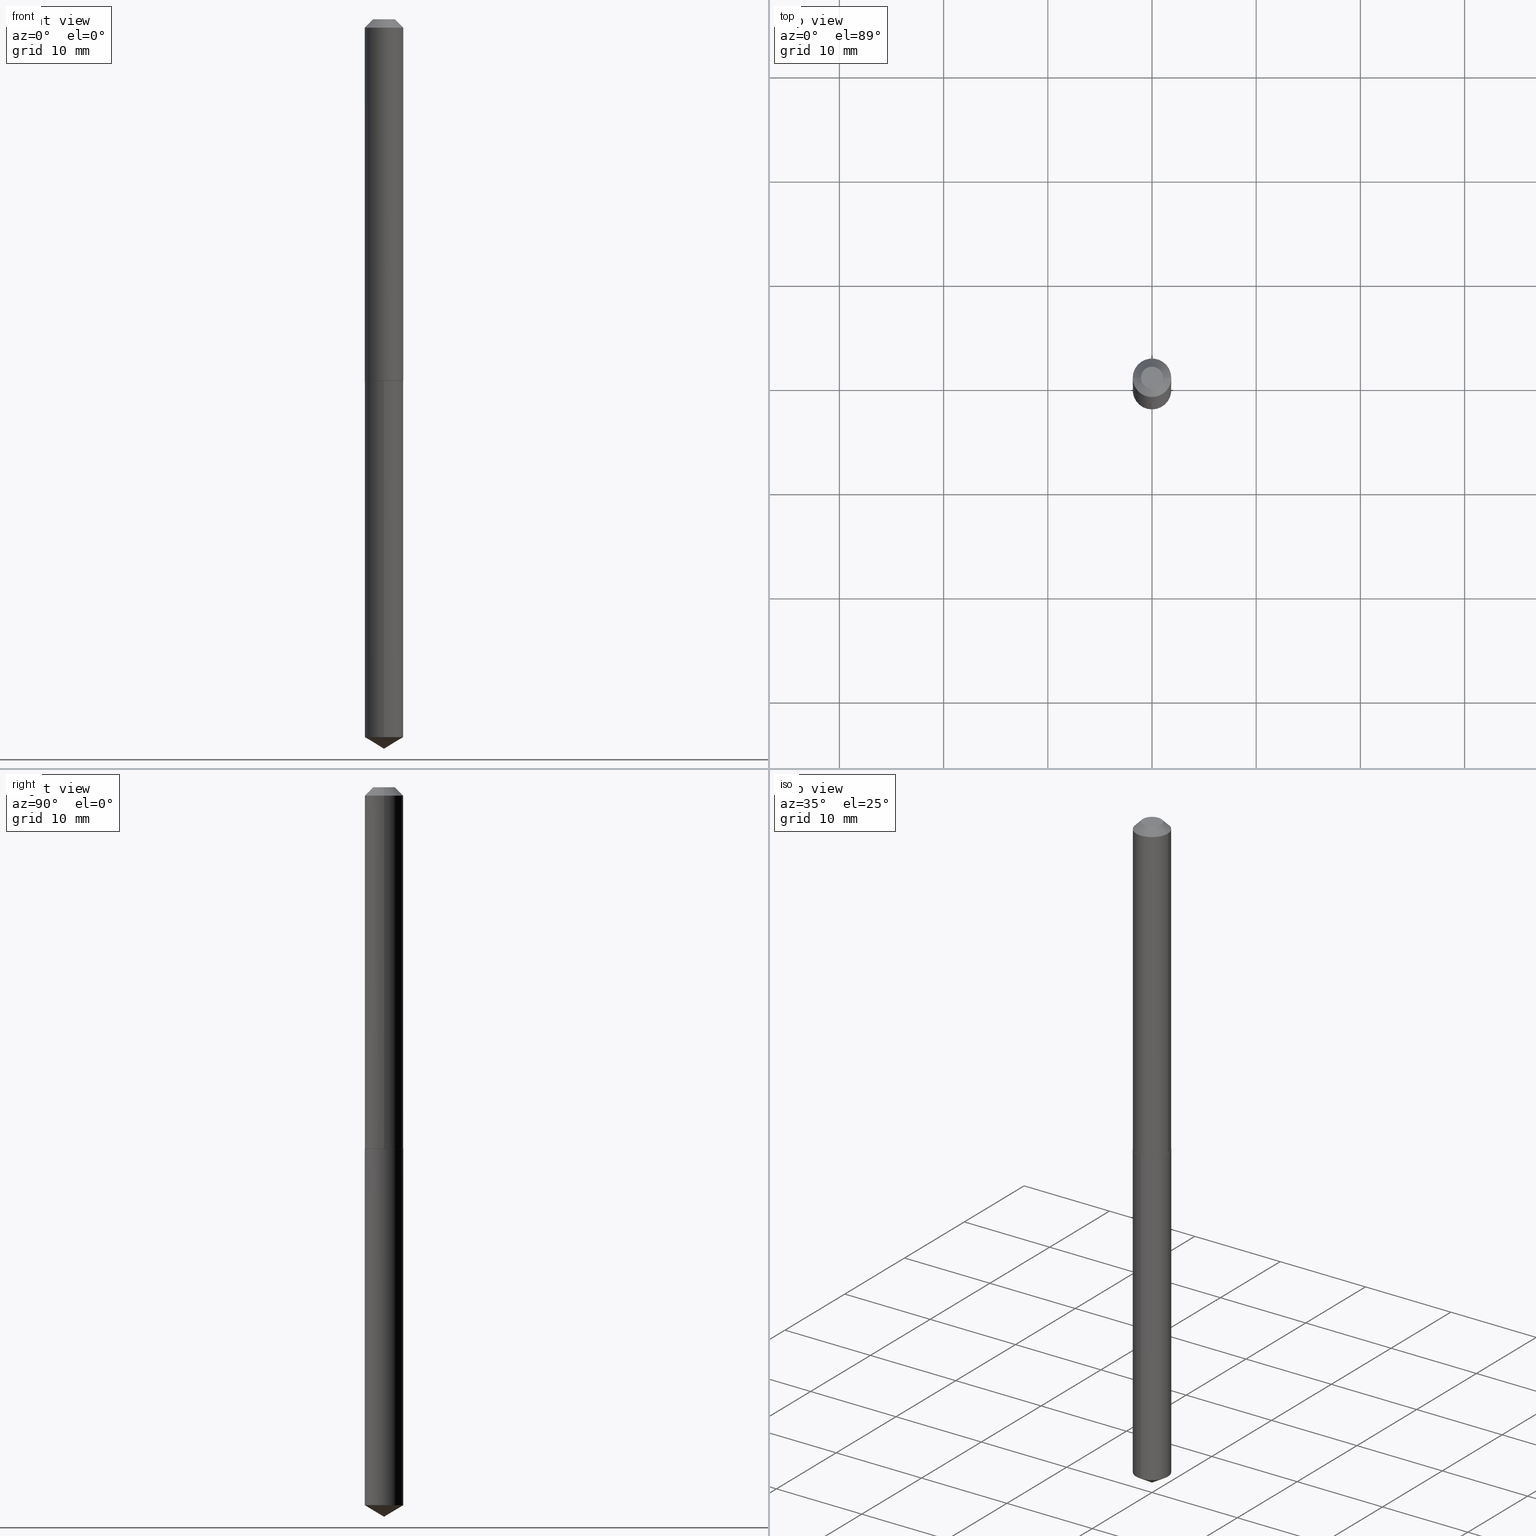
[diagram: canonical four-view strip — front | top / right | iso, engineering-drawing reading convention]
A machine part, canonical four-view strip (front | top / right | iso — engineering-drawing reading convention). The complete STEP part file that produces these views, byte-faithful:
ISO-10303-21;
HEADER;
FILE_DESCRIPTION (( 'STEP AP203' ),
    '1' );
FILE_NAME ('61073.STEP',
    '2024-04-23T03:14:23',
    ( '' ),
    ( '' ),
    'SwSTEP 2.0',
    'SolidWorks 2023',
    '' );
FILE_SCHEMA (( 'CONFIG_CONTROL_DESIGN' ));
ENDSEC;

DATA;
#1 = VECTOR ( 'NONE', #95, 39.37007874015748143 ) ;
#2 = ORIENTED_EDGE ( 'NONE', *, *, #390, .T. ) ;
#3 = CARTESIAN_POINT ( 'NONE',  ( 5.176303830012663012E-16, 0.07284999999999522413, -1.366200000000000081 ) ) ;
#4 = ORIENTED_EDGE ( 'NONE', *, *, #318, .F. ) ;
#5 = EDGE_LOOP ( 'NONE', ( #4, #185, #362, #191 ) ) ;
#6 = CARTESIAN_POINT ( 'NONE',  ( 3.339776748607040525E-29, -4.768316064458083385E-15, -1.365699999999999914 ) ) ;
#7 = ORIENTED_EDGE ( 'NONE', *, *, #154, .F. ) ;
#8 = APPROVAL_PERSON_ORGANIZATION ( #49, #223, #385 ) ;
#9 = ORIENTED_EDGE ( 'NONE', *, *, #357, .F. ) ;
#10 = PLANE ( 'NONE',  #245 ) ;
#11 = ADVANCED_FACE ( 'NONE', ( #38 ), #276, .T. ) ;
#12 = DIRECTION ( 'NONE',  ( -2.445494545529433837E-29, 3.491444478637119500E-15, 1.000000000000000000 ) ) ;
#13 = CARTESIAN_POINT ( 'NONE',  ( -5.989671091818665474E-48, 8.551662891793964028E-34, 2.449293598294711584E-19 ) ) ;
#14 = AXIS2_PLACEMENT_3D ( 'NONE', #383, #228, #76 ) ;
#15 = ORIENTED_EDGE ( 'NONE', *, *, #314, .T. ) ;
#16 = CARTESIAN_POINT ( 'NONE',  ( -0.07285000000000016462, -4.250685681456849033E-15, -1.365699999999999914 ) ) ;
#17 = DIRECTION ( 'NONE',  ( 1.000000000000000000, -6.982962677686262766E-15, 0.000000000000000000 ) ) ;
#18 = APPROVAL_STATUS ( 'not_yet_approved' ) ;
#19 = CARTESIAN_POINT ( 'NONE',  ( -0.07235000000000038622, -4.253334908630959445E-15, -1.366199999999999859 ) ) ;
#20 = ADVANCED_FACE ( 'NONE', ( #130 ), #317, .T. ) ;
#21 = APPROVAL_STATUS ( 'not_yet_approved' ) ;
#22 = DIRECTION ( 'NONE',  ( 1.000000000000000000, -6.982962677686261977E-15, 0.000000000000000000 ) ) ;
#23 = LINE ( 'NONE', #356, #257 ) ;
#24 = PERSON_AND_ORGANIZATION ( #27, #166 ) ;
#25 = AXIS2_PLACEMENT_3D ( 'NONE', #374, #12, #370 ) ;
#26 = DIRECTION ( 'NONE',  ( 2.438088387897960049E-29, -3.491481338843145188E-15, -1.000000000000000000 ) ) ;
#27 = PERSON ( 'UNSPECIFIED', 'UNSPECIFIED', 'UNSPECIFIED', ('UNSPECIFIED'), ('UNSPECIFIED'), ('UNSPECIFIED') ) ;
#28 = ORIENTED_EDGE ( 'NONE', *, *, #248, .F. ) ;
#29 = CC_DESIGN_APPROVAL ( #223, ( #87 ) ) ;
#30 = ORIENTED_EDGE ( 'NONE', *, *, #154, .T. ) ;
#31 = ORIENTED_EDGE ( 'NONE', *, *, #361, .T. ) ;
#32 = AXIS2_PLACEMENT_3D ( 'NONE', #235, #259, #349 ) ;
#33 = COORDINATED_UNIVERSAL_TIME_OFFSET ( 5, 0, .BEHIND. ) ;
#34 = ORIENTED_EDGE ( 'NONE', *, *, #236, .T. ) ;
#35 = ADVANCED_FACE ( 'NONE', ( #343 ), #10, .F. ) ;
#36 = CARTESIAN_POINT ( 'NONE',  ( 0.04159999999999999809, -4.471463938419003597E-16, 2.449293598320496415E-19 ) ) ;
#37 = DIRECTION ( 'NONE',  ( 6.982962677686265922E-15, 1.000000000000000000, -3.491444478637119105E-15 ) ) ;
#38 = FACE_OUTER_BOUND ( 'NONE', #312, .T. ) ;
#39 = CIRCLE ( 'NONE', #123, 0.07285000000000001197 ) ;
#40 = LINE ( 'NONE', #286, #173 ) ;
#41 = APPROVAL_ROLE ( '' ) ;
#42 = DIRECTION ( 'NONE',  ( -5.985567269335946802E-15, -0.8571673007021111124, 0.5150380749100559319 ) ) ;
#43 = PRODUCT ( '61073', '61073', '', ( #352 ) ) ;
#44 = FACE_OUTER_BOUND ( 'NONE', #302, .T. ) ;
#45 = COORDINATED_UNIVERSAL_TIME_OFFSET ( 5, 0, .BEHIND. ) ;
#46 = CC_DESIGN_APPROVAL ( #148, ( #82 ) ) ;
#47 = FACE_OUTER_BOUND ( 'NONE', #62, .T. ) ;
#48 = EDGE_CURVE ( 'NONE', #253, #216, #39, .T. ) ;
#49 = PERSON_AND_ORGANIZATION ( #27, #166 ) ;
#50 = LINE ( 'NONE', #258, #221 ) ;
#51 = DIRECTION ( 'NONE',  ( 1.000000000000000000, 0.000000000000000000, 0.000000000000000000 ) ) ;
#52 = CARTESIAN_POINT ( 'NONE',  ( 3.340999483010132766E-29, -4.770061805127504889E-15, -1.366199999999999859 ) ) ;
#53 = DATE_AND_TIME ( #176, #193 ) ;
#54 = CIRCLE ( 'NONE', #212, 0.07285000000000016462 ) ;
#55 = DIRECTION ( 'NONE',  ( 1.000000000000000000, -6.982962677686262766E-15, 0.000000000000000000 ) ) ;
#56 = ORIENTED_EDGE ( 'NONE', *, *, #159, .T. ) ;
#57 = DIRECTION ( 'NONE',  ( -2.445494545529433837E-29, 3.491444478637119105E-15, 1.000000000000000000 ) ) ;
#58 = EDGE_LOOP ( 'NONE', ( #214, #121, #7, #209 ) ) ;
#59 = DIRECTION ( 'NONE',  ( -2.445468806185136597E-29, 3.491481338843145583E-15, 1.000000000000000000 ) ) ;
#60 = CLOSED_SHELL ( 'NONE', ( #329, #20, #279, #215, #120, #201, #388, #227 ) ) ;
#61 = ORIENTED_EDGE ( 'NONE', *, *, #357, .T. ) ;
#62 = EDGE_LOOP ( 'NONE', ( #304, #151 ) ) ;
#63 = DIRECTION ( 'NONE',  ( -6.982962677686265922E-15, -1.000000000000000000, 3.468864327941583565E-15 ) ) ;
#64 = EDGE_CURVE ( 'NONE', #153, #333, #105, .T. ) ;
#65 = AXIS2_PLACEMENT_3D ( 'NONE', #83, #293, #384 ) ;
#66 = CIRCLE ( 'NONE', #321, 0.07284999999999999809 ) ;
#67 = DIRECTION ( 'NONE',  ( -2.445494545529433837E-29, 3.491444478637119500E-15, 1.000000000000000000 ) ) ;
#68 = CARTESIAN_POINT ( 'NONE',  ( 0.07235000000000038622, -5.275279154858108532E-15, -1.366199999999999859 ) ) ;
#69 = ORIENTED_EDGE ( 'NONE', *, *, #361, .F. ) ;
#70 = DIRECTION ( 'NONE',  ( -0.7071067811864629737, 7.493145998870048082E-15, 0.7071067811866319497 ) ) ;
#71 = CARTESIAN_POINT ( 'NONE',  ( 7.642090019328604414E-31, -1.091087918388490513E-16, -0.03125000000000021511 ) ) ;
#72 = AXIS2_PLACEMENT_3D ( 'NONE', #144, #263, #179 ) ;
#73 = CC_DESIGN_SECURITY_CLASSIFICATION ( #82, ( #87 ) ) ;
#74 = EDGE_CURVE ( 'NONE', #122, #273, #40, .T. ) ;
#75 = CARTESIAN_POINT ( 'NONE',  ( -0.07285000000000001197, 3.996000392305954789E-16, -0.03125000000000021511 ) ) ;
#76 = DIRECTION ( 'NONE',  ( 1.000000000000000000, -6.982962677686266711E-15, 4.876176775795936353E-29 ) ) ;
#77 = COORDINATED_UNIVERSAL_TIME_OFFSET ( 5, 0, .BEHIND. ) ;
#78 = CYLINDRICAL_SURFACE ( 'NONE', #14, 0.07285000000000008136 ) ;
#79 = CC_DESIGN_PERSON_AND_ORGANIZATION_ASSIGNMENT ( #196, #219, ( #82 ) ) ;
#80 = MANIFOLD_SOLID_BREP ( 'Body-Move/Copy2[2]', #60 ) ;
#81 = PERSON_AND_ORGANIZATION_ROLE ( 'design_owner' ) ;
#82 = SECURITY_CLASSIFICATION ( '', '', #350 ) ;
#83 = CARTESIAN_POINT ( 'NONE',  ( 3.340999483010132766E-29, -4.770061805127504889E-15, -1.366199999999999859 ) ) ;
#84 = DATE_TIME_ROLE ( 'classification_date' ) ;
#85 = DIRECTION ( 'NONE',  ( -2.445494545529433837E-29, 3.491444478637119500E-15, 1.000000000000000000 ) ) ;
#86 = CIRCLE ( 'NONE', #372, 0.07284999999999999809 ) ;
#87 = PRODUCT_DEFINITION_FORMATION_WITH_SPECIFIED_SOURCE ( 'ANY', '', #43, .NOT_KNOWN. ) ;
#88 = FACE_OUTER_BOUND ( 'NONE', #301, .T. ) ;
#89 = ORIENTED_EDGE ( 'NONE', *, *, #336, .T. ) ;
#90 = APPROVAL_STATUS ( 'not_yet_approved' ) ;
#91 = ORIENTED_EDGE ( 'NONE', *, *, #74, .F. ) ;
#92 = VECTOR ( 'NONE', #70, 39.37007874015748854 ) ;
#93 = ORIENTED_EDGE ( 'NONE', *, *, #390, .F. ) ;
#94 = ORIENTED_EDGE ( 'NONE', *, *, #314, .F. ) ;
#95 = DIRECTION ( 'NONE',  ( -0.7071067811865451302, 2.468850131082231817E-15, -0.7071067811865499042 ) ) ;
#96 = LINE ( 'NONE', #341, #360 ) ;
#97 = DIRECTION ( 'NONE',  ( 6.090539988449784746E-15, 0.8571673007021146651, 0.5150380749100500477 ) ) ;
#98 = CIRCLE ( 'NONE', #198, 0.07285000000000016462 ) ;
#99 = LOCAL_TIME ( 23, 14, 23.00000000000000000, #355 ) ;
#100 = CARTESIAN_POINT ( 'NONE',  ( -0.07285000000000008136, 5.176303830012335635E-16, -3.583444213250702632E-30 ) ) ;
#101 = DIRECTION ( 'NONE',  ( -2.445468806185136597E-29, 3.491481338843145583E-15, 1.000000000000000000 ) ) ;
#102 = EDGE_CURVE ( 'NONE', #180, #253, #369, .T. ) ;
#103 = CYLINDRICAL_SURFACE ( 'NONE', #138, 0.07284999999999999809 ) ;
#104 = DIRECTION ( 'NONE',  ( -2.445468806185136597E-29, 3.491481338843145583E-15, 1.000000000000000000 ) ) ;
#105 = CIRCLE ( 'NONE', #313, 0.04159999999999999809 ) ;
#106 = DESIGN_CONTEXT ( 'detailed design', #277, 'design' ) ;
#107 =( LENGTH_UNIT ( ) NAMED_UNIT ( * ) SI_UNIT ( $, .METRE. ) );
#108 = FACE_OUTER_BOUND ( 'NONE', #275, .T. ) ;
#109 = APPLICATION_PROTOCOL_DEFINITION ( 'international standard', 'config_control_design', 1994, #277 ) ;
#110 = EDGE_CURVE ( 'NONE', #180, #222, #54, .T. ) ;
#111 = FACE_OUTER_BOUND ( 'NONE', #58, .T. ) ;
#112 = AXIS2_PLACEMENT_3D ( 'NONE', #200, #26, #170 ) ;
#113 =( NAMED_UNIT ( * ) PLANE_ANGLE_UNIT ( ) SI_UNIT ( $, .RADIAN. ) );
#114 = DIRECTION ( 'NONE',  ( -6.982962677686265922E-15, -1.000000000000000000, 3.749962928845934523E-15 ) ) ;
#115 =( NAMED_UNIT ( * ) SI_UNIT ( $, .STERADIAN. ) SOLID_ANGLE_UNIT ( ) );
#116 = CARTESIAN_POINT ( 'NONE',  ( 3.340999483010132766E-29, -4.770061805127504889E-15, -1.366199999999999859 ) ) ;
#117 = ORIENTED_EDGE ( 'NONE', *, *, #64, .T. ) ;
#118 = CALENDAR_DATE ( 2024, 22, 4 ) ;
#119 = VERTEX_POINT ( 'NONE', #68 ) ;
#120 = ADVANCED_FACE ( 'NONE', ( #252 ), #353, .T. ) ;
#121 = ORIENTED_EDGE ( 'NONE', *, *, #248, .T. ) ;
#122 = VERTEX_POINT ( 'NONE', #134 ) ;
#123 = AXIS2_PLACEMENT_3D ( 'NONE', #71, #308, #160 ) ;
#124 = AXIS2_PLACEMENT_3D ( 'NONE', #135, #167, #51 ) ;
#125 = EDGE_LOOP ( 'NONE', ( #218, #189, #146 ) ) ;
#126 = DIRECTION ( 'NONE',  ( 1.000000000000000000, -6.982962677686266711E-15, 4.876176775795936353E-29 ) ) ;
#127 = DIMENSIONAL_EXPONENTS ( 1.000000000000000000, 0.000000000000000000, 0.000000000000000000, 0.000000000000000000, 0.000000000000000000, 0.000000000000000000, 0.000000000000000000 ) ;
#128 = COORDINATED_UNIVERSAL_TIME_OFFSET ( 5, 0, .BEHIND. ) ;
#129 = EDGE_CURVE ( 'NONE', #122, #368, #375, .T. ) ;
#130 = FACE_OUTER_BOUND ( 'NONE', #211, .T. ) ;
#131 = DIRECTION ( 'NONE',  ( 1.000000000000000000, -6.982962677686262766E-15, 0.000000000000000000 ) ) ;
#132 = DIRECTION ( 'NONE',  ( 2.445494545529433837E-29, -3.491444478637119105E-15, -1.000000000000000000 ) ) ;
#133 = EDGE_CURVE ( 'NONE', #153, #253, #226, .T. ) ;
#134 = CARTESIAN_POINT ( 'NONE',  ( 6.739538418024567708E-29, -9.622071838676037627E-15, -2.755900000000000016 ) ) ;
#135 = CARTESIAN_POINT ( 'NONE',  ( 0.000000000000000000, 0.000000000000000000, 0.000000000000000000 ) ) ;
#136 = VECTOR ( 'NONE', #57, 39.37007874015748143 ) ;
#137 = PRODUCT_DEFINITION_SHAPE ( 'NONE', 'NONE',  #376 ) ;
#138 = AXIS2_PLACEMENT_3D ( 'NONE', #307, #280, #339 ) ;
#139 = EDGE_CURVE ( 'NONE', #177, #119, #205, .T. ) ;
#140 = PERSON_AND_ORGANIZATION ( #27, #166 ) ;
#141 = DIRECTION ( 'NONE',  ( -2.445468806185136597E-29, 3.491481338843145583E-15, 1.000000000000000000 ) ) ;
#142 = FACE_OUTER_BOUND ( 'NONE', #125, .T. ) ;
#143 = PERSON_AND_ORGANIZATION ( #27, #166 ) ;
#144 = CARTESIAN_POINT ( 'NONE',  ( -8.953980956318705099E-28, 1.278363218437419844E-13, 36.61417874015747742 ) ) ;
#145 = CARTESIAN_POINT ( 'NONE',  ( 3.339776748607040525E-29, -4.768316064458083385E-15, -1.365699999999999914 ) ) ;
#146 = ORIENTED_EDGE ( 'NONE', *, *, #325, .F. ) ;
#147 = CC_DESIGN_PERSON_AND_ORGANIZATION_ASSIGNMENT ( #24, #389, ( #87 ) ) ;
#148 = APPROVAL ( #90, 'UNSPECIFIED' ) ;
#149 = ORIENTED_EDGE ( 'NONE', *, *, #102, .F. ) ;
#150 = LINE ( 'NONE', #267, #359 ) ;
#151 = ORIENTED_EDGE ( 'NONE', *, *, #139, .F. ) ;
#152 = AXIS2_PLACEMENT_3D ( 'NONE', #347, #156, #63 ) ;
#153 = VERTEX_POINT ( 'NONE', #203 ) ;
#154 = EDGE_CURVE ( 'NONE', #162, #278, #86, .T. ) ;
#155 = DIRECTION ( 'NONE',  ( -2.445468806185136597E-29, 3.491481338843145583E-15, 1.000000000000000000 ) ) ;
#156 = DIRECTION ( 'NONE',  ( -2.445494545529433837E-29, 3.491444478637119500E-15, 1.000000000000000000 ) ) ;
#157 = DIRECTION ( 'NONE',  ( -6.982962677686265922E-15, -1.000000000000000000, 3.749962928845934523E-15 ) ) ;
#158 = ORIENTED_EDGE ( 'NONE', *, *, #110, .T. ) ;
#159 = EDGE_CURVE ( 'NONE', #119, #177, #238, .T. ) ;
#160 = DIRECTION ( 'NONE',  ( 1.000000000000000000, -6.982962677686265922E-15, 0.000000000000000000 ) ) ;
#161 = CIRCLE ( 'NONE', #25, 0.07285000000000001197 ) ;
#162 = VERTEX_POINT ( 'NONE', #234 ) ;
#163 = APPROVAL_DATE_TIME ( #288, #287 ) ;
#164 = EDGE_LOOP ( 'NONE', ( #30, #31 ) ) ;
#165 = AXIS2_PLACEMENT_3D ( 'NONE', #145, #207, #274 ) ;
#166 = ORGANIZATION ( 'UNSPECIFIED', 'UNSPECIFIED', '' ) ;
#167 = DIRECTION ( 'NONE',  ( 0.000000000000000000, 0.000000000000000000, 1.000000000000000000 ) ) ;
#168 = PLANE ( 'NONE',  #65 ) ;
#169 =( CONVERSION_BASED_UNIT ( 'INCH', #266 ) LENGTH_UNIT ( ) NAMED_UNIT ( #127 ) );
#170 = DIRECTION ( 'NONE',  ( -1.000000000000000000, 6.982962677686265922E-15, -4.876176775795935793E-29 ) ) ;
#171 = CALENDAR_DATE ( 2024, 22, 4 ) ;
#172 = DIRECTION ( 'NONE',  ( -2.445494545529433837E-29, 3.491444478637119500E-15, 1.000000000000000000 ) ) ;
#173 = VECTOR ( 'NONE', #97, 39.37007874015748143 ) ;
#174 = APPROVAL_PERSON_ORGANIZATION ( #206, #148, #330 ) ;
#175 = CARTESIAN_POINT ( 'NONE',  ( -0.07285000000000001197, -1.921082045147231496E-15, -0.03125000000000021511 ) ) ;
#176 = CALENDAR_DATE ( 2024, 22, 4 ) ;
#177 = VERTEX_POINT ( 'NONE', #19 ) ;
#178 = EDGE_CURVE ( 'NONE', #368, #162, #50, .T. ) ;
#179 = DIRECTION ( 'NONE',  ( -6.982962677686265922E-15, -1.000000000000000000, 3.468864327941583565E-15 ) ) ;
#180 = VERTEX_POINT ( 'NONE', #381 ) ;
#181 = CC_DESIGN_DATE_AND_TIME_ASSIGNMENT ( #363, #84, ( #82 ) ) ;
#182 = VECTOR ( 'NONE', #42, 39.37007874015748854 ) ;
#183 = DIRECTION ( 'NONE',  ( -2.445494545529433837E-29, 3.491444478637119500E-15, 1.000000000000000000 ) ) ;
#184 = ORIENTED_EDGE ( 'NONE', *, *, #236, .F. ) ;
#185 = ORIENTED_EDGE ( 'NONE', *, *, #139, .T. ) ;
#186 = DIRECTION ( 'NONE',  ( 2.445468806185136597E-29, -3.491481338843145583E-15, -1.000000000000000000 ) ) ;
#187 = CLOSED_SHELL ( 'NONE', ( #208, #244, #11, #348, #35 ) ) ;
#188 = CARTESIAN_POINT ( 'NONE',  ( 3.340999483010132766E-29, -4.770061805127504889E-15, -1.366199999999999859 ) ) ;
#189 = ORIENTED_EDGE ( 'NONE', *, *, #74, .T. ) ;
#190 = DIRECTION ( 'NONE',  ( 0.7071067811865451302, -7.319954787623248157E-15, -0.7071067811865499042 ) ) ;
#191 = ORIENTED_EDGE ( 'NONE', *, *, #110, .F. ) ;
#192 = CARTESIAN_POINT ( 'NONE',  ( 0.000000000000000000, 0.000000000000000000, 0.000000000000000000 ) ) ;
#193 = LOCAL_TIME ( 23, 14, 23.00000000000000000, #33 ) ;
#194 = DIRECTION ( 'NONE',  ( 2.445468806185136597E-29, -3.491481338843145583E-15, -1.000000000000000000 ) ) ;
#195 = CC_DESIGN_DATE_AND_TIME_ASSIGNMENT ( #322, #295, ( #376 ) ) ;
#196 = PERSON_AND_ORGANIZATION ( #27, #166 ) ;
#197 = CYLINDRICAL_SURFACE ( 'NONE', #250, 0.07284999999999999809 ) ;
#198 = AXIS2_PLACEMENT_3D ( 'NONE', #6, #59, #55 ) ;
#199 = CIRCLE ( 'NONE', #297, 0.07285000000000001197 ) ;
#200 = CARTESIAN_POINT ( 'NONE',  ( -2.994835545909332737E-48, 4.275831445896982014E-34, 1.224646799147355792E-19 ) ) ;
#201 = ADVANCED_FACE ( 'NONE', ( #108 ), #78, .T. ) ;
#202 = DATE_AND_TIME ( #233, #99 ) ;
#203 = CARTESIAN_POINT ( 'NONE',  ( -0.04159999999999999809, 3.450456433111720626E-16, 2.449293598272491167E-19 ) ) ;
#204 = SHAPE_DEFINITION_REPRESENTATION ( #137, #367 ) ;
#205 = CIRCLE ( 'NONE', #32, 0.07235000000000038622 ) ;
#206 = PERSON_AND_ORGANIZATION ( #27, #166 ) ;
#207 = DIRECTION ( 'NONE',  ( -2.445468806185136597E-29, 3.491481338843145583E-15, 1.000000000000000000 ) ) ;
#208 = ADVANCED_FACE ( 'NONE', ( #111 ), #197, .T. ) ;
#209 = ORIENTED_EDGE ( 'NONE', *, *, #178, .F. ) ;
#210 = MANIFOLD_SOLID_BREP ( 'Body-Move/Copy2[1]', #187 ) ;
#211 = EDGE_LOOP ( 'NONE', ( #15, #299, #93, #184 ) ) ;
#212 = AXIS2_PLACEMENT_3D ( 'NONE', #224, #285, #131 ) ;
#213 = CC_DESIGN_APPROVAL ( #287, ( #376 ) ) ;
#214 = ORIENTED_EDGE ( 'NONE', *, *, #325, .T. ) ;
#215 = ADVANCED_FACE ( 'NONE', ( #47 ), #168, .F. ) ;
#216 = VERTEX_POINT ( 'NONE', #296 ) ;
#217 = CARTESIAN_POINT ( 'NONE',  ( -5.989671091818665474E-48, 8.551662891793964028E-34, 2.449293598294711584E-19 ) ) ;
#218 = ORIENTED_EDGE ( 'NONE', *, *, #129, .F. ) ;
#219 = PERSON_AND_ORGANIZATION_ROLE ( 'classification_officer' ) ;
#220 = CARTESIAN_POINT ( 'NONE',  ( 3.340999483010132766E-29, -4.770061805127504889E-15, -1.366199999999999859 ) ) ;
#221 = VECTOR ( 'NONE', #262, 39.37007874015748143 ) ;
#222 = VERTEX_POINT ( 'NONE', #294 ) ;
#223 = APPROVAL ( #18, 'UNSPECIFIED' ) ;
#224 = CARTESIAN_POINT ( 'NONE',  ( 3.339776748607040525E-29, -4.768316064458083385E-15, -1.365699999999999914 ) ) ;
#225 = DIRECTION ( 'NONE',  ( -2.445468806185136597E-29, 3.491481338843145583E-15, 1.000000000000000000 ) ) ;
#226 = LINE ( 'NONE', #75, #1 ) ;
#227 = ADVANCED_FACE ( 'NONE', ( #354 ), #231, .F. ) ;
#228 = DIRECTION ( 'NONE',  ( -2.445468806185136597E-29, 3.491481338843145583E-15, 1.000000000000000000 ) ) ;
#229 = PERSON_AND_ORGANIZATION_ROLE ( 'design_supplier' ) ;
#230 = PERSON_AND_ORGANIZATION_ROLE ( 'creator' ) ;
#231 = PLANE ( 'NONE',  #112 ) ;
#232 = AXIS2_PLACEMENT_3D ( 'NONE', #192, #225, #126 ) ;
#233 = CALENDAR_DATE ( 2024, 22, 4 ) ;
#234 = CARTESIAN_POINT ( 'NONE',  ( -5.087088310694110530E-16, -0.07285000000000477205, -1.366199999999999415 ) ) ;
#235 = CARTESIAN_POINT ( 'NONE',  ( 3.340999483010132766E-29, -4.770061805127504889E-15, -1.366199999999999859 ) ) ;
#236 = EDGE_CURVE ( 'NONE', #222, #216, #23, .T. ) ;
#237 = DIRECTION ( 'NONE',  ( 0.7071067811864629737, -2.468850131081371564E-15, 0.7071067811866319497 ) ) ;
#238 = CIRCLE ( 'NONE', #305, 0.07235000000000038622 ) ;
#239 = AXIS2_PLACEMENT_3D ( 'NONE', #246, #186, #378 ) ;
#240 = APPROVAL_DATE_TIME ( #53, #148 ) ;
#241 = ORIENTED_EDGE ( 'NONE', *, *, #48, .F. ) ;
#242 = DIRECTION ( 'NONE',  ( -6.982962677686265133E-15, -1.000000000000000000, 0.000000000000000000 ) ) ;
#243 = ORIENTED_EDGE ( 'NONE', *, *, #64, .F. ) ;
#244 = ADVANCED_FACE ( 'NONE', ( #142 ), #270, .T. ) ;
#245 = AXIS2_PLACEMENT_3D ( 'NONE', #188, #132, #37 ) ;
#246 = CARTESIAN_POINT ( 'NONE',  ( 7.642090019328604414E-31, -1.091087918388490513E-16, -0.03125000000000021511 ) ) ;
#247 = DIRECTION ( 'NONE',  ( 1.000000000000000000, -6.982962677686265922E-15, 4.876201187447971567E-29 ) ) ;
#248 = EDGE_CURVE ( 'NONE', #273, #278, #298, .T. ) ;
#249 = ORIENTED_EDGE ( 'NONE', *, *, #48, .T. ) ;
#250 = AXIS2_PLACEMENT_3D ( 'NONE', #320, #172, #351 ) ;
#251 = AXIS2_PLACEMENT_3D ( 'NONE', #217, #155, #282 ) ;
#252 = FACE_OUTER_BOUND ( 'NONE', #5, .T. ) ;
#253 = VERTEX_POINT ( 'NONE', #175 ) ;
#254 = FACE_OUTER_BOUND ( 'NONE', #331, .T. ) ;
#255 = CARTESIAN_POINT ( 'NONE',  ( 6.739468087840211207E-29, -9.622172555502984274E-15, -2.755900000000000016 ) ) ;
#256 = PERSON_AND_ORGANIZATION ( #27, #166 ) ;
#257 = VECTOR ( 'NONE', #387, 39.37007874015748143 ) ;
#258 = CARTESIAN_POINT ( 'NONE',  ( -5.087088310694110530E-16, -0.07285000000000477205, -1.366199999999999415 ) ) ;
#259 = DIRECTION ( 'NONE',  ( -2.445468806185136597E-29, 3.491481338843145583E-15, 1.000000000000000000 ) ) ;
#260 = CARTESIAN_POINT ( 'NONE',  ( 7.642090019328604414E-31, -1.091087918388490513E-16, -0.03125000000000021511 ) ) ;
#261 = EDGE_CURVE ( 'NONE', #119, #222, #150, .T. ) ;
#262 = DIRECTION ( 'NONE',  ( -2.445494545529433837E-29, 3.491444478637119105E-15, 1.000000000000000000 ) ) ;
#263 = DIRECTION ( 'NONE',  ( -2.445494545529433837E-29, 3.491444478637119500E-15, 1.000000000000000000 ) ) ;
#264 = APPROVAL_PERSON_ORGANIZATION ( #292, #287, #41 ) ;
#265 = AXIS2_PLACEMENT_3D ( 'NONE', #260, #194, #345 ) ;
#266 = LENGTH_MEASURE_WITH_UNIT ( LENGTH_MEASURE( 0.02539999999999999897 ), #107 );
#267 = CARTESIAN_POINT ( 'NONE',  ( 0.07285000000000016462, -5.277024895527528458E-15, -1.365699999999999914 ) ) ;
#268 = CC_DESIGN_PERSON_AND_ORGANIZATION_ASSIGNMENT ( #140, #230, ( #376 ) ) ;
#269 = CARTESIAN_POINT ( 'NONE',  ( 5.176303830012991375E-16, 0.07284999999999051956, -2.712127303903842268 ) ) ;
#270 = CONICAL_SURFACE ( 'NONE', #72, 65.52281426576863055, 1.029744258676655866 ) ;
#271 = LINE ( 'NONE', #16, #92 ) ;
#272 = EDGE_CURVE ( 'NONE', #273, #368, #366, .T. ) ;
#273 = VERTEX_POINT ( 'NONE', #269 ) ;
#274 = DIRECTION ( 'NONE',  ( 1.000000000000000000, -6.982962677686262766E-15, 0.000000000000000000 ) ) ;
#275 = EDGE_LOOP ( 'NONE', ( #149, #158, #34, #241 ) ) ;
#276 = CONICAL_SURFACE ( 'NONE', #152, 65.52281426576863055, 1.029744258676655866 ) ;
#277 = APPLICATION_CONTEXT ( 'configuration controlled 3d designs of mechanical parts and assemblies' ) ;
#278 = VERTEX_POINT ( 'NONE', #364 ) ;
#279 = ADVANCED_FACE ( 'NONE', ( #88 ), #386, .T. ) ;
#280 = DIRECTION ( 'NONE',  ( -2.445494545529433837E-29, 3.491444478637119500E-15, 1.000000000000000000 ) ) ;
#281 = ORIENTED_EDGE ( 'NONE', *, *, #133, .F. ) ;
#282 = DIRECTION ( 'NONE',  ( 1.000000000000000000, -6.982962677686265922E-15, 4.876201187447971567E-29 ) ) ;
#283 = ORIENTED_EDGE ( 'NONE', *, *, #272, .T. ) ;
#284 = VECTOR ( 'NONE', #340, 39.37007874015748143 ) ;
#285 = DIRECTION ( 'NONE',  ( -2.445468806185136597E-29, 3.491481338843145583E-15, 1.000000000000000000 ) ) ;
#286 = CARTESIAN_POINT ( 'NONE',  ( 6.739539034737267331E-29, -9.622071838676037627E-15, -2.755900000000000016 ) ) ;
#287 = APPROVAL ( #21, 'UNSPECIFIED' ) ;
#288 = DATE_AND_TIME ( #171, #346 ) ;
#289 = AXIS2_PLACEMENT_3D ( 'NONE', #358, #183, #242 ) ;
#290 = CONICAL_SURFACE ( 'NONE', #265, 0.07285000000000001197, 0.7853981633974449483 ) ;
#291 = CC_DESIGN_PERSON_AND_ORGANIZATION_ASSIGNMENT ( #143, #81, ( #43 ) ) ;
#292 = PERSON_AND_ORGANIZATION ( #27, #166 ) ;
#293 = DIRECTION ( 'NONE',  ( -2.438088387897960049E-29, 3.491481338843145188E-15, 1.000000000000000000 ) ) ;
#294 = CARTESIAN_POINT ( 'NONE',  ( 0.07285000000000016462, -5.277024895527528458E-15, -1.365699999999999914 ) ) ;
#295 = DATE_TIME_ROLE ( 'creation_date' ) ;
#296 = CARTESIAN_POINT ( 'NONE',  ( 0.07285000000000001197, -6.178176229082936802E-16, -0.03125000000000021511 ) ) ;
#297 = AXIS2_PLACEMENT_3D ( 'NONE', #382, #141, #380 ) ;
#298 = LINE ( 'NONE', #3, #136 ) ;
#299 = ORIENTED_EDGE ( 'NONE', *, *, #102, .T. ) ;
#300 = CC_DESIGN_PERSON_AND_ORGANIZATION_ASSIGNMENT ( #256, #229, ( #87 ) ) ;
#301 = EDGE_LOOP ( 'NONE', ( #56, #328, #94, #315 ) ) ;
#302 = EDGE_LOOP ( 'NONE', ( #9, #243, #334, #249 ) ) ;
#303 = UNCERTAINTY_MEASURE_WITH_UNIT (LENGTH_MEASURE( 1.000000000000000082E-05 ), #169, 'distance_accuracy_value', 'NONE');
#304 = ORIENTED_EDGE ( 'NONE', *, *, #159, .F. ) ;
#305 = AXIS2_PLACEMENT_3D ( 'NONE', #52, #326, #22 ) ;
#306 = LOCAL_TIME ( 23, 14, 23.00000000000000000, #128 ) ;
#307 = CARTESIAN_POINT ( 'NONE',  ( 3.340999483010132766E-29, -4.770061805127504889E-15, -1.366199999999999859 ) ) ;
#308 = DIRECTION ( 'NONE',  ( -2.445468806185136597E-29, 3.491481338843145583E-15, 1.000000000000000000 ) ) ;
#309 = PRODUCT_RELATED_PRODUCT_CATEGORY ( 'detail', '', ( #43 ) ) ;
#310 = EDGE_LOOP ( 'NONE', ( #117, #89 ) ) ;
#311 = CARTESIAN_POINT ( 'NONE',  ( -5.087088310693781180E-16, -0.07285000000000946274, -2.712127303903842268 ) ) ;
#312 = EDGE_LOOP ( 'NONE', ( #91, #365, #337 ) ) ;
#313 = AXIS2_PLACEMENT_3D ( 'NONE', #13, #104, #247 ) ;
#314 = EDGE_CURVE ( 'NONE', #222, #180, #98, .T. ) ;
#315 = ORIENTED_EDGE ( 'NONE', *, *, #261, .F. ) ;
#316 = APPLICATION_PROTOCOL_DEFINITION ( 'international standard', 'config_control_design', 1994, #324 ) ;
#317 = CYLINDRICAL_SURFACE ( 'NONE', #232, 0.07285000000000008136 ) ;
#318 = EDGE_CURVE ( 'NONE', #177, #180, #271, .T. ) ;
#319 = APPROVAL_DATE_TIME ( #202, #223 ) ;
#320 = CARTESIAN_POINT ( 'NONE',  ( 3.340999483010132766E-29, -4.770061805127504889E-15, -1.366199999999999859 ) ) ;
#321 = AXIS2_PLACEMENT_3D ( 'NONE', #220, #67, #157 ) ;
#322 = DATE_AND_TIME ( #323, #373 ) ;
#323 = CALENDAR_DATE ( 2024, 22, 4 ) ;
#324 = APPLICATION_CONTEXT ( 'configuration controlled 3d designs of mechanical parts and assemblies' ) ;
#325 = EDGE_CURVE ( 'NONE', #368, #273, #161, .T. ) ;
#326 = DIRECTION ( 'NONE',  ( -2.445468806185136597E-29, 3.491481338843145583E-15, 1.000000000000000000 ) ) ;
#327 = AXIS2_PLACEMENT_3D ( 'NONE', #377, #101, #17 ) ;
#328 = ORIENTED_EDGE ( 'NONE', *, *, #318, .T. ) ;
#329 = ADVANCED_FACE ( 'NONE', ( #254 ), #332, .T. ) ;
#330 = APPROVAL_ROLE ( '' ) ;
#331 = EDGE_LOOP ( 'NONE', ( #342, #61, #2, #281 ) ) ;
#332 = CONICAL_SURFACE ( 'NONE', #239, 0.07285000000000001197, 0.7853981633974449483 ) ;
#333 = VERTEX_POINT ( 'NONE', #36 ) ;
#334 = ORIENTED_EDGE ( 'NONE', *, *, #133, .T. ) ;
#335 = FACE_OUTER_BOUND ( 'NONE', #379, .T. ) ;
#336 = EDGE_CURVE ( 'NONE', #333, #153, #344, .T. ) ;
#337 = ORIENTED_EDGE ( 'NONE', *, *, #272, .F. ) ;
#338 =( GEOMETRIC_REPRESENTATION_CONTEXT ( 3 ) GLOBAL_UNCERTAINTY_ASSIGNED_CONTEXT ( ( #303 ) ) GLOBAL_UNIT_ASSIGNED_CONTEXT ( ( #169, #113, #115 ) ) REPRESENTATION_CONTEXT ( 'NONE', 'WORKASPACE' ) );
#339 = DIRECTION ( 'NONE',  ( -6.982962677686265922E-15, -1.000000000000000000, 3.749962928845934523E-15 ) ) ;
#340 = DIRECTION ( 'NONE',  ( -2.445468806185136877E-29, 3.491481338843145188E-15, 1.000000000000000000 ) ) ;
#341 = CARTESIAN_POINT ( 'NONE',  ( 0.07285000000000001197, -6.088960709765051893E-16, -0.03125000000000021511 ) ) ;
#342 = ORIENTED_EDGE ( 'NONE', *, *, #336, .F. ) ;
#343 = FACE_OUTER_BOUND ( 'NONE', #164, .T. ) ;
#344 = CIRCLE ( 'NONE', #251, 0.04159999999999999809 ) ;
#345 = DIRECTION ( 'NONE',  ( -1.000000000000000000, 6.982962677686265922E-15, 0.000000000000000000 ) ) ;
#346 = LOCAL_TIME ( 23, 14, 23.00000000000000000, #45 ) ;
#347 = CARTESIAN_POINT ( 'NONE',  ( -8.953980956318705099E-28, 1.278363218437419844E-13, 36.61417874015747742 ) ) ;
#348 = ADVANCED_FACE ( 'NONE', ( #335 ), #103, .T. ) ;
#349 = DIRECTION ( 'NONE',  ( 1.000000000000000000, -6.982962677686261977E-15, 0.000000000000000000 ) ) ;
#350 = SECURITY_CLASSIFICATION_LEVEL ( 'unclassified' ) ;
#351 = DIRECTION ( 'NONE',  ( -6.982962677686265922E-15, -1.000000000000000000, 3.749962928845934523E-15 ) ) ;
#352 = MECHANICAL_CONTEXT ( 'NONE', #324, 'mechanical' ) ;
#353 = CONICAL_SURFACE ( 'NONE', #327, 0.07285000000000016462, 0.7853981633973288190 ) ;
#354 = FACE_OUTER_BOUND ( 'NONE', #310, .T. ) ;
#355 = COORDINATED_UNIVERSAL_TIME_OFFSET ( 5, 0, .BEHIND. ) ;
#356 = CARTESIAN_POINT ( 'NONE',  ( 0.07285000000000008136, -5.087088310694450726E-16, 3.552294781167343726E-30 ) ) ;
#357 = EDGE_CURVE ( 'NONE', #333, #216, #96, .T. ) ;
#358 = CARTESIAN_POINT ( 'NONE',  ( 6.632457363386118118E-29, -9.469292258989520531E-15, -2.712127303903842268 ) ) ;
#359 = VECTOR ( 'NONE', #237, 39.37007874015748854 ) ;
#360 = VECTOR ( 'NONE', #190, 39.37007874015748143 ) ;
#361 = EDGE_CURVE ( 'NONE', #278, #162, #66, .T. ) ;
#362 = ORIENTED_EDGE ( 'NONE', *, *, #261, .T. ) ;
#363 = DATE_AND_TIME ( #118, #306 ) ;
#364 = CARTESIAN_POINT ( 'NONE',  ( 5.176303830012994334E-16, 0.07284999999999522413, -1.366200000000000081 ) ) ;
#365 = ORIENTED_EDGE ( 'NONE', *, *, #129, .T. ) ;
#366 = CIRCLE ( 'NONE', #289, 0.07285000000000001197 ) ;
#367 = ADVANCED_BREP_SHAPE_REPRESENTATION ( '61073', ( #210, #80, #124 ), #338 ) ;
#368 = VERTEX_POINT ( 'NONE', #311 ) ;
#369 = LINE ( 'NONE', #100, #284 ) ;
#370 = DIRECTION ( 'NONE',  ( -6.982962677686265133E-15, -1.000000000000000000, 0.000000000000000000 ) ) ;
#371 = ORIENTED_EDGE ( 'NONE', *, *, #178, .T. ) ;
#372 = AXIS2_PLACEMENT_3D ( 'NONE', #116, #85, #114 ) ;
#373 = LOCAL_TIME ( 23, 14, 23.00000000000000000, #77 ) ;
#374 = CARTESIAN_POINT ( 'NONE',  ( 6.632457363386118118E-29, -9.469292258989520531E-15, -2.712127303903842268 ) ) ;
#375 = LINE ( 'NONE', #255, #182 ) ;
#376 = PRODUCT_DEFINITION ( 'UNKNOWN', '', #87, #106 ) ;
#377 = CARTESIAN_POINT ( 'NONE',  ( 3.339776748607040525E-29, -4.768316064458083385E-15, -1.365699999999999914 ) ) ;
#378 = DIRECTION ( 'NONE',  ( -1.000000000000000000, 6.982962677686265922E-15, 0.000000000000000000 ) ) ;
#379 = EDGE_LOOP ( 'NONE', ( #28, #283, #371, #69 ) ) ;
#380 = DIRECTION ( 'NONE',  ( 1.000000000000000000, -6.982962677686265922E-15, 0.000000000000000000 ) ) ;
#381 = CARTESIAN_POINT ( 'NONE',  ( -0.07285000000000016462, -4.250685681456849033E-15, -1.365699999999999914 ) ) ;
#382 = CARTESIAN_POINT ( 'NONE',  ( 7.642090019328604414E-31, -1.091087918388490513E-16, -0.03125000000000021511 ) ) ;
#383 = CARTESIAN_POINT ( 'NONE',  ( 0.000000000000000000, 0.000000000000000000, 0.000000000000000000 ) ) ;
#384 = DIRECTION ( 'NONE',  ( 1.000000000000000000, -6.982962677686265922E-15, 4.876176775795935793E-29 ) ) ;
#385 = APPROVAL_ROLE ( '' ) ;
#386 = CONICAL_SURFACE ( 'NONE', #165, 0.07285000000000016462, 0.7853981633973288190 ) ;
#387 = DIRECTION ( 'NONE',  ( -2.445468806185136877E-29, 3.491481338843145188E-15, 1.000000000000000000 ) ) ;
#388 = ADVANCED_FACE ( 'NONE', ( #44 ), #290, .T. ) ;
#389 = PERSON_AND_ORGANIZATION_ROLE ( 'creator' ) ;
#390 = EDGE_CURVE ( 'NONE', #216, #253, #199, .T. ) ;
ENDSEC;
END-ISO-10303-21;
